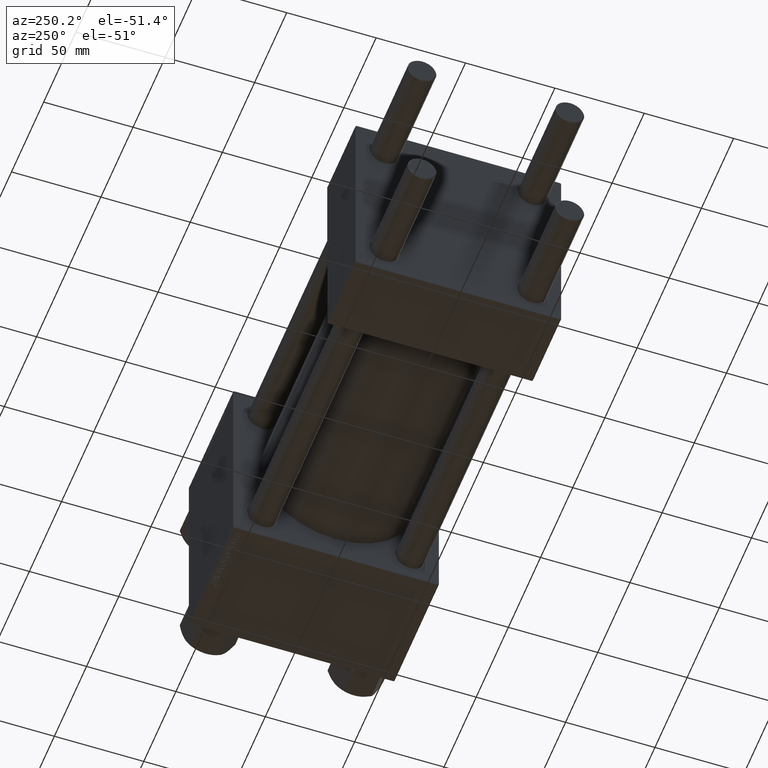
[diagram: clean part render]
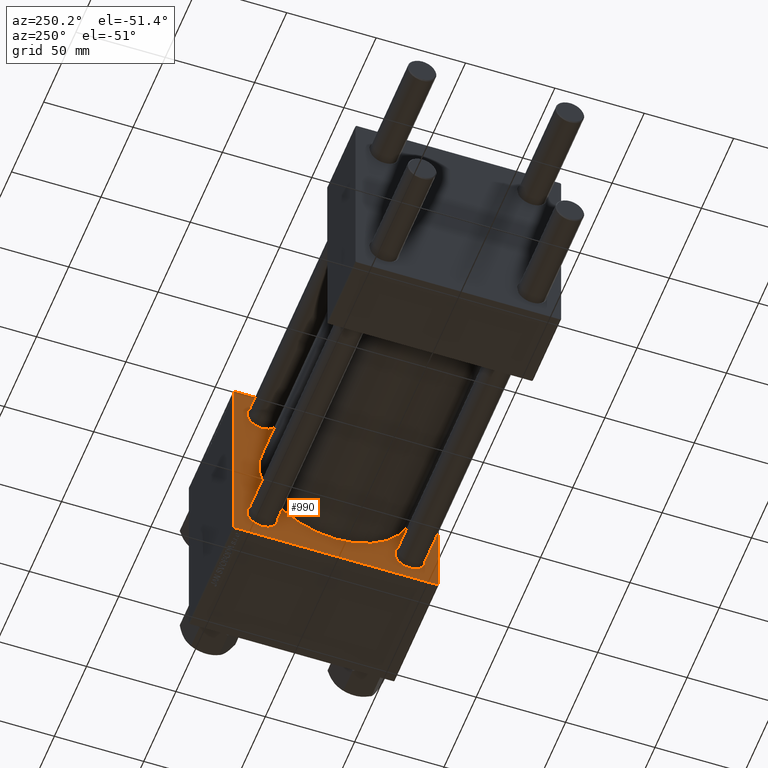
[diagram: same view with one face highlighted and labeled with its STEP entity id]
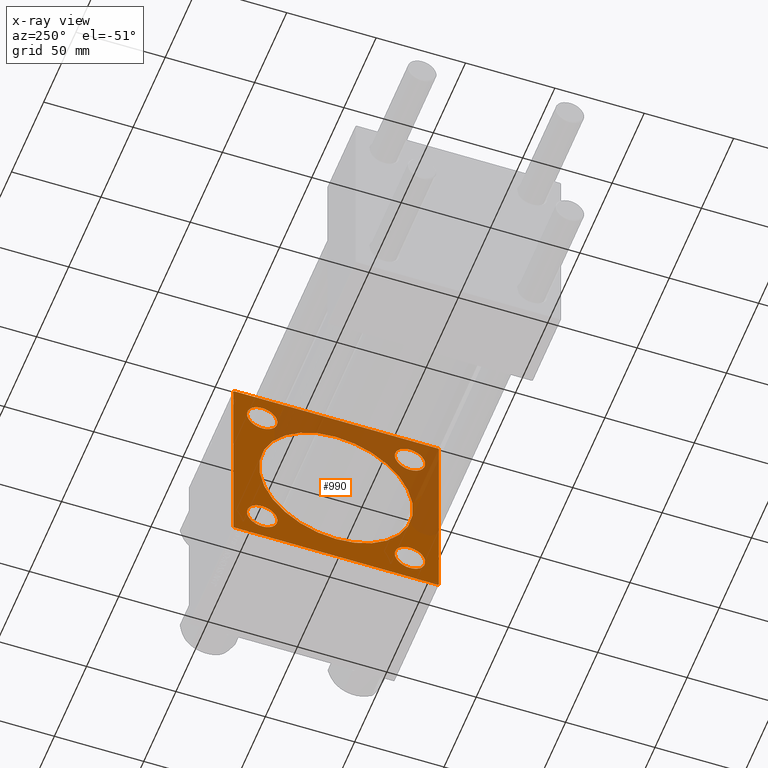
[diagram: x-ray of the same camera — body ghosted, the highlighted face saturated]
A machine part, auxiliary view. The second image highlights one B-rep face of the part: STEP entity #990.
The next image is the same camera in x-ray: the body ghosted, the highlighted face saturated — about 38% of this face is hidden behind the body in this view.
In plain terms, the highlighted planar face has unit normal (-1, 0, 0).
Its self-contained STEP definition (entity closure, byte-faithful):
#562 = DIRECTION ( 'NONE',  ( 0.000000000000000000, 0.000000000000000000, 1.000000000000000000 ) ) ;
#633 = VECTOR ( 'NONE', #16795, 1000.000000000000000 ) ;
#990 = ADVANCED_FACE ( 'NONE', ( #19421, #18924, #3642, #23242, #11532, #42845 ), #27306, .T. ) ;
#1047 = VERTEX_POINT ( 'NONE', #8951 ) ;
#1265 = CARTESIAN_POINT ( 'NONE',  ( 190.0000000000000000, -57.24999999999962341, -57.25000000000041211 ) ) ;
#1303 = DIRECTION ( 'NONE',  ( 0.000000000000000000, 0.7071067811865474617, -0.7071067811865474617 ) ) ;
#1424 = EDGE_CURVE ( 'NONE', #22094, #2461, #37162, .T. ) ;
#1578 = CARTESIAN_POINT ( 'NONE',  ( 190.0000000000000000, 57.00000000000000000, -57.49999999999996447 ) ) ;
#1665 = ORIENTED_EDGE ( 'NONE', *, *, #33757, .T. ) ;
#1775 = DIRECTION ( 'NONE',  ( -0.000000000000000000, -0.7071067811865474617, -0.7071067811865474617 ) ) ;
#2187 = CARTESIAN_POINT ( 'NONE',  ( 190.0000000000000000, -57.49999999999999289, 57.00000000000004974 ) ) ;
#2461 = VERTEX_POINT ( 'NONE', #50373 ) ;
#2579 = EDGE_CURVE ( 'NONE', #34929, #21456, #27957, .T. ) ;
#2848 = VERTEX_POINT ( 'NONE', #14844 ) ;
#2940 = ORIENTED_EDGE ( 'NONE', *, *, #32656, .T. ) ;
#3058 = VECTOR ( 'NONE', #27709, 1000.000000000000000 ) ;
#3347 = VERTEX_POINT ( 'NONE', #7022 ) ;
#3370 = DIRECTION ( 'NONE',  ( 1.000000000000000000, 0.000000000000000000, 0.000000000000000000 ) ) ;
#3409 = DIRECTION ( 'NONE',  ( -0.000000000000000000, 0.7071067811865524577, 0.7071067811865426878 ) ) ;
#3477 = CARTESIAN_POINT ( 'NONE',  ( 190.0000000000000000, -41.34999999999998721, 41.35000000000000853 ) ) ;
#3642 = FACE_BOUND ( 'NONE', #37600, .T. ) ;
#4189 = CARTESIAN_POINT ( 'NONE',  ( 190.0000000000000000, -41.34999999999998721, -41.35000000000000853 ) ) ;
#4436 = DIRECTION ( 'NONE',  ( 0.000000000000000000, 0.000000000000000000, 1.000000000000000000 ) ) ;
#5250 = DIRECTION ( 'NONE',  ( 0.000000000000000000, 0.000000000000000000, -1.000000000000000000 ) ) ;
#6474 = AXIS2_PLACEMENT_3D ( 'NONE', #4189, #19723, #4436 ) ;
#7022 = CARTESIAN_POINT ( 'NONE',  ( 190.0000000000000000, -41.34999999999998721, -49.84999999999993747 ) ) ;
#7645 = EDGE_CURVE ( 'NONE', #2848, #29770, #43073, .T. ) ;
#7704 = CARTESIAN_POINT ( 'NONE',  ( 190.0000000000000000, 0.000000000000000000, 0.000000000000000000 ) ) ;
#7821 = EDGE_CURVE ( 'NONE', #7861, #3347, #36582, .T. ) ;
#7861 = VERTEX_POINT ( 'NONE', #41067 ) ;
#8127 = EDGE_CURVE ( 'NONE', #33896, #35346, #40701, .T. ) ;
#8801 = CARTESIAN_POINT ( 'NONE',  ( 190.0000000000000000, -41.34999999999998721, 41.35000000000000853 ) ) ;
#8943 = DIRECTION ( 'NONE',  ( 0.000000000000000000, -1.000000000000000000, -1.206764157201257291E-16 ) ) ;
#8951 = CARTESIAN_POINT ( 'NONE',  ( 190.0000000000000000, 41.34999999999999432, 49.84999999999993037 ) ) ;
#9001 = CIRCLE ( 'NONE', #33420, 8.500000000000007105 ) ;
#9203 = ORIENTED_EDGE ( 'NONE', *, *, #44252, .T. ) ;
#9400 = CARTESIAN_POINT ( 'NONE',  ( 190.0000000000000000, 57.24999999999998579, -57.24999999999998579 ) ) ;
#10297 = VERTEX_POINT ( 'NONE', #35200 ) ;
#10314 = CARTESIAN_POINT ( 'NONE',  ( 190.0000000000000000, 0.000000000000000000, 0.000000000000000000 ) ) ;
#11106 = CIRCLE ( 'NONE', #46074, 43.00000000000000000 ) ;
#11407 = ORIENTED_EDGE ( 'NONE', *, *, #35838, .T. ) ;
#11532 = FACE_BOUND ( 'NONE', #11602, .T. ) ;
#11602 = EDGE_LOOP ( 'NONE', ( #24226, #46076 ) ) ;
#11786 = LINE ( 'NONE', #38302, #12664 ) ;
#11812 = DIRECTION ( 'NONE',  ( 0.000000000000000000, 0.000000000000000000, 1.000000000000000000 ) ) ;
#12171 = ORIENTED_EDGE ( 'NONE', *, *, #47330, .T. ) ;
#12626 = CIRCLE ( 'NONE', #18325, 8.499999999999923617 ) ;
#12664 = VECTOR ( 'NONE', #3409, 1000.000000000000000 ) ;
#12668 = CARTESIAN_POINT ( 'NONE',  ( 190.0000000000000000, 57.50000000000000000, 57.50000000000000711 ) ) ;
#12894 = DIRECTION ( 'NONE',  ( 1.000000000000000000, -0.000000000000000000, 0.000000000000000000 ) ) ;
#13058 = EDGE_CURVE ( 'NONE', #33417, #36875, #23554, .T. ) ;
#13159 = CARTESIAN_POINT ( 'NONE',  ( 190.0000000000000000, 57.50000000000000000, -56.99999999999996447 ) ) ;
#13368 = EDGE_CURVE ( 'NONE', #3347, #7861, #37418, .T. ) ;
#13657 = CARTESIAN_POINT ( 'NONE',  ( 190.0000000000000000, 41.34999999999999432, -49.85000000000001563 ) ) ;
#13718 = EDGE_LOOP ( 'NONE', ( #34731, #2940 ) ) ;
#14047 = DIRECTION ( 'NONE',  ( 1.000000000000000000, -0.000000000000000000, 0.000000000000000000 ) ) ;
#14119 = EDGE_LOOP ( 'NONE', ( #31240, #12171 ) ) ;
#14678 = EDGE_CURVE ( 'NONE', #42439, #20492, #32269, .T. ) ;
#14721 = EDGE_CURVE ( 'NONE', #35346, #33896, #9001, .T. ) ;
#14844 = CARTESIAN_POINT ( 'NONE',  ( 190.0000000000000000, 0.000000000000000000, 43.00000000000000000 ) ) ;
#15131 = VERTEX_POINT ( 'NONE', #23754 ) ;
#15349 = DIRECTION ( 'NONE',  ( -1.000000000000000000, 0.000000000000000000, -0.000000000000000000 ) ) ;
#15946 = AXIS2_PLACEMENT_3D ( 'NONE', #32189, #46936, #11812 ) ;
#16254 = AXIS2_PLACEMENT_3D ( 'NONE', #3477, #19001, #50052 ) ;
#16509 = EDGE_CURVE ( 'NONE', #21456, #22094, #36673, .T. ) ;
#16795 = DIRECTION ( 'NONE',  ( 0.000000000000000000, -0.7071067811865524577, 0.7071067811865426878 ) ) ;
#17470 = CARTESIAN_POINT ( 'NONE',  ( 190.0000000000000000, 41.34999999999999432, -41.35000000000000142 ) ) ;
#18290 = DIRECTION ( 'NONE',  ( 0.000000000000000000, -1.000000000000000000, -1.206764157201257291E-16 ) ) ;
#18325 = AXIS2_PLACEMENT_3D ( 'NONE', #24494, #36470, #562 ) ;
#18924 = FACE_BOUND ( 'NONE', #13718, .T. ) ;
#19001 = DIRECTION ( 'NONE',  ( 1.000000000000000000, -0.000000000000000000, 0.000000000000000000 ) ) ;
#19280 = EDGE_LOOP ( 'NONE', ( #32236, #9203, #28746, #11407, #44294, #1665, #42270, #44666 ) ) ;
#19421 = FACE_BOUND ( 'NONE', #14119, .T. ) ;
#19723 = DIRECTION ( 'NONE',  ( 1.000000000000000000, -0.000000000000000000, 0.000000000000000000 ) ) ;
#20448 = CARTESIAN_POINT ( 'NONE',  ( 190.0000000000000000, -41.34999999999998721, -41.35000000000000853 ) ) ;
#20492 = VERTEX_POINT ( 'NONE', #32769 ) ;
#20662 = CARTESIAN_POINT ( 'NONE',  ( 190.0000000000000000, 57.25000000000000711, 57.25000000000000711 ) ) ;
#20895 = CARTESIAN_POINT ( 'NONE',  ( 190.0000000000000000, 57.00000000000000000, 57.50000000000000711 ) ) ;
#21456 = VERTEX_POINT ( 'NONE', #13159 ) ;
#21533 = DIRECTION ( 'NONE',  ( 1.000000000000000000, 0.000000000000000000, 0.000000000000000000 ) ) ;
#22094 = VERTEX_POINT ( 'NONE', #1578 ) ;
#22708 = CIRCLE ( 'NONE', #41419, 8.499999999999923617 ) ;
#23242 = FACE_BOUND ( 'NONE', #33737, .T. ) ;
#23554 = CIRCLE ( 'NONE', #16254, 8.499999999999923617 ) ;
#23712 = VECTOR ( 'NONE', #1775, 1000.000000000000114 ) ;
#23754 = CARTESIAN_POINT ( 'NONE',  ( 190.0000000000000000, 41.34999999999999432, 32.85000000000007958 ) ) ;
#24226 = ORIENTED_EDGE ( 'NONE', *, *, #7645, .T. ) ;
#24339 = DIRECTION ( 'NONE',  ( 1.000000000000000000, -0.000000000000000000, 0.000000000000000000 ) ) ;
#24494 = CARTESIAN_POINT ( 'NONE',  ( 190.0000000000000000, 41.34999999999999432, 41.35000000000000142 ) ) ;
#25688 = CARTESIAN_POINT ( 'NONE',  ( 190.0000000000000000, 57.50000000000000000, -57.49999999999996447 ) ) ;
#27306 = PLANE ( 'NONE',  #40436 ) ;
#27631 = AXIS2_PLACEMENT_3D ( 'NONE', #10314, #21533, #41132 ) ;
#27646 = VERTEX_POINT ( 'NONE', #20895 ) ;
#27709 = DIRECTION ( 'NONE',  ( 0.000000000000000000, 0.000000000000000000, -1.000000000000000000 ) ) ;
#27811 = ORIENTED_EDGE ( 'NONE', *, *, #13368, .T. ) ;
#27957 = LINE ( 'NONE', #12668, #3058 ) ;
#28433 = DIRECTION ( 'NONE',  ( 0.000000000000000000, 0.000000000000000000, 1.000000000000000000 ) ) ;
#28746 = ORIENTED_EDGE ( 'NONE', *, *, #14678, .F. ) ;
#29770 = VERTEX_POINT ( 'NONE', #48013 ) ;
#30113 = DIRECTION ( 'NONE',  ( 0.000000000000000000, 0.000000000000000000, -1.000000000000000000 ) ) ;
#31240 = ORIENTED_EDGE ( 'NONE', *, *, #13058, .T. ) ;
#31393 = DIRECTION ( 'NONE',  ( -0.000000000000000000, 0.000000000000000000, 1.000000000000000000 ) ) ;
#31668 = DIRECTION ( 'NONE',  ( 1.000000000000000000, -0.000000000000000000, 0.000000000000000000 ) ) ;
#32108 = ORIENTED_EDGE ( 'NONE', *, *, #8127, .T. ) ;
#32189 = CARTESIAN_POINT ( 'NONE',  ( 190.0000000000000000, 41.34999999999999432, 41.35000000000000142 ) ) ;
#32236 = ORIENTED_EDGE ( 'NONE', *, *, #1424, .T. ) ;
#32269 = LINE ( 'NONE', #47776, #38287 ) ;
#32656 = EDGE_CURVE ( 'NONE', #15131, #1047, #36267, .T. ) ;
#32769 = CARTESIAN_POINT ( 'NONE',  ( 190.0000000000000000, -57.49999999999999289, -57.00000000000003553 ) ) ;
#33417 = VERTEX_POINT ( 'NONE', #44258 ) ;
#33420 = AXIS2_PLACEMENT_3D ( 'NONE', #17470, #12894, #28433 ) ;
#33693 = CARTESIAN_POINT ( 'NONE',  ( 190.0000000000000000, 0.000000000000000000, 0.000000000000000000 ) ) ;
#33737 = EDGE_LOOP ( 'NONE', ( #48444, #27811 ) ) ;
#33757 = EDGE_CURVE ( 'NONE', #27646, #34929, #36454, .T. ) ;
#33896 = VERTEX_POINT ( 'NONE', #38215 ) ;
#34731 = ORIENTED_EDGE ( 'NONE', *, *, #34952, .T. ) ;
#34929 = VERTEX_POINT ( 'NONE', #39294 ) ;
#34952 = EDGE_CURVE ( 'NONE', #1047, #15131, #12626, .T. ) ;
#35200 = CARTESIAN_POINT ( 'NONE',  ( 190.0000000000000000, -57.00000000000004263, 57.49999999999999289 ) ) ;
#35346 = VERTEX_POINT ( 'NONE', #13657 ) ;
#35405 = VECTOR ( 'NONE', #1303, 1000.000000000000114 ) ;
#35838 = EDGE_CURVE ( 'NONE', #42439, #10297, #11786, .T. ) ;
#36206 = LINE ( 'NONE', #47645, #47993 ) ;
#36267 = CIRCLE ( 'NONE', #15946, 8.499999999999923617 ) ;
#36415 = LINE ( 'NONE', #1265, #633 ) ;
#36454 = LINE ( 'NONE', #20662, #35405 ) ;
#36470 = DIRECTION ( 'NONE',  ( 1.000000000000000000, -0.000000000000000000, 0.000000000000000000 ) ) ;
#36582 = CIRCLE ( 'NONE', #6474, 8.499999999999923617 ) ;
#36673 = LINE ( 'NONE', #9400, #23712 ) ;
#36875 = VERTEX_POINT ( 'NONE', #46641 ) ;
#37162 = LINE ( 'NONE', #25688, #43657 ) ;
#37229 = CARTESIAN_POINT ( 'NONE',  ( 190.0000000000000000, 41.34999999999999432, -41.35000000000000142 ) ) ;
#37418 = CIRCLE ( 'NONE', #41474, 8.499999999999923617 ) ;
#37600 = EDGE_LOOP ( 'NONE', ( #32108, #39178 ) ) ;
#38215 = CARTESIAN_POINT ( 'NONE',  ( 190.0000000000000000, 41.34999999999999432, -32.84999999999999432 ) ) ;
#38287 = VECTOR ( 'NONE', #5250, 1000.000000000000000 ) ;
#38302 = CARTESIAN_POINT ( 'NONE',  ( 190.0000000000000000, -57.24999999999962341, 57.25000000000041211 ) ) ;
#38498 = DIRECTION ( 'NONE',  ( 0.000000000000000000, 0.000000000000000000, 1.000000000000000000 ) ) ;
#39178 = ORIENTED_EDGE ( 'NONE', *, *, #14721, .T. ) ;
#39294 = CARTESIAN_POINT ( 'NONE',  ( 190.0000000000000000, 57.50000000000000000, 57.00000000000000711 ) ) ;
#39879 = DIRECTION ( 'NONE',  ( 0.000000000000000000, 0.000000000000000000, 1.000000000000000000 ) ) ;
#40436 = AXIS2_PLACEMENT_3D ( 'NONE', #7704, #15349, #31393 ) ;
#40701 = CIRCLE ( 'NONE', #43129, 8.500000000000007105 ) ;
#41067 = CARTESIAN_POINT ( 'NONE',  ( 190.0000000000000000, -41.34999999999998721, -32.85000000000008669 ) ) ;
#41132 = DIRECTION ( 'NONE',  ( 0.000000000000000000, 0.000000000000000000, -1.000000000000000000 ) ) ;
#41262 = EDGE_CURVE ( 'NONE', #29770, #2848, #11106, .T. ) ;
#41419 = AXIS2_PLACEMENT_3D ( 'NONE', #8801, #24339, #39879 ) ;
#41474 = AXIS2_PLACEMENT_3D ( 'NONE', #20448, #31668, #43847 ) ;
#42270 = ORIENTED_EDGE ( 'NONE', *, *, #2579, .T. ) ;
#42439 = VERTEX_POINT ( 'NONE', #2187 ) ;
#42845 = FACE_OUTER_BOUND ( 'NONE', #19280, .T. ) ;
#43073 = CIRCLE ( 'NONE', #27631, 43.00000000000000000 ) ;
#43129 = AXIS2_PLACEMENT_3D ( 'NONE', #37229, #14047, #38498 ) ;
#43657 = VECTOR ( 'NONE', #18290, 1000.000000000000000 ) ;
#43847 = DIRECTION ( 'NONE',  ( 0.000000000000000000, 0.000000000000000000, 1.000000000000000000 ) ) ;
#44252 = EDGE_CURVE ( 'NONE', #2461, #20492, #36415, .T. ) ;
#44258 = CARTESIAN_POINT ( 'NONE',  ( 190.0000000000000000, -41.34999999999998721, 49.84999999999993747 ) ) ;
#44294 = ORIENTED_EDGE ( 'NONE', *, *, #49496, .F. ) ;
#44666 = ORIENTED_EDGE ( 'NONE', *, *, #16509, .T. ) ;
#46074 = AXIS2_PLACEMENT_3D ( 'NONE', #33693, #3370, #30113 ) ;
#46076 = ORIENTED_EDGE ( 'NONE', *, *, #41262, .T. ) ;
#46641 = CARTESIAN_POINT ( 'NONE',  ( 190.0000000000000000, -41.34999999999998721, 32.85000000000008669 ) ) ;
#46936 = DIRECTION ( 'NONE',  ( 1.000000000000000000, -0.000000000000000000, 0.000000000000000000 ) ) ;
#47330 = EDGE_CURVE ( 'NONE', #36875, #33417, #22708, .T. ) ;
#47645 = CARTESIAN_POINT ( 'NONE',  ( 190.0000000000000000, 57.50000000000000000, 57.50000000000000711 ) ) ;
#47776 = CARTESIAN_POINT ( 'NONE',  ( 190.0000000000000000, -57.49999999999999289, 57.49999999999999289 ) ) ;
#47993 = VECTOR ( 'NONE', #8943, 1000.000000000000000 ) ;
#48013 = CARTESIAN_POINT ( 'NONE',  ( 190.0000000000000000, 5.265981236333618470E-15, -43.00000000000000000 ) ) ;
#48444 = ORIENTED_EDGE ( 'NONE', *, *, #7821, .T. ) ;
#49496 = EDGE_CURVE ( 'NONE', #27646, #10297, #36206, .T. ) ;
#50052 = DIRECTION ( 'NONE',  ( 0.000000000000000000, 0.000000000000000000, 1.000000000000000000 ) ) ;
#50373 = CARTESIAN_POINT ( 'NONE',  ( 190.0000000000000000, -57.00000000000004263, -57.49999999999997868 ) ) ;